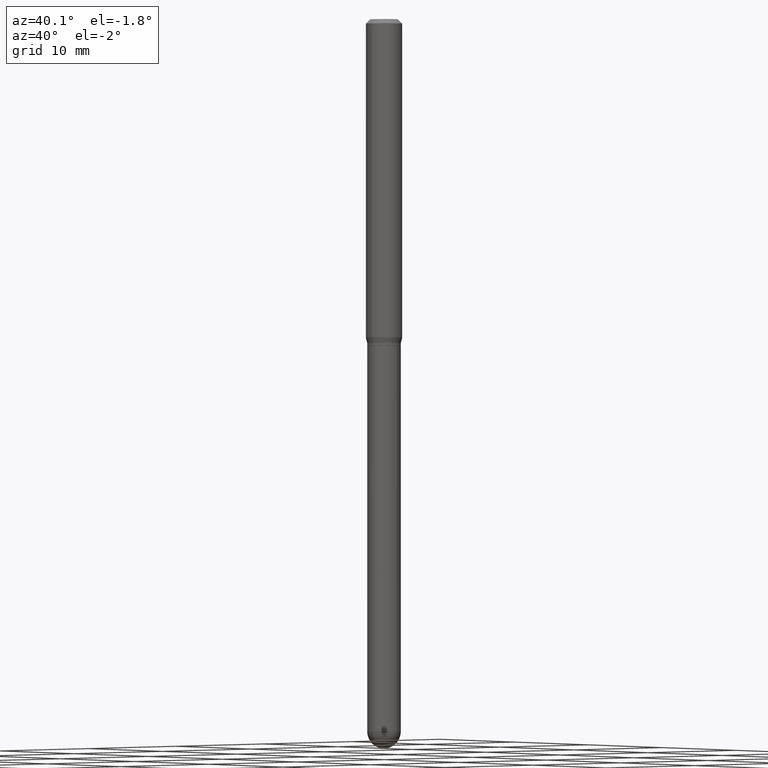
[diagram: clean part render]
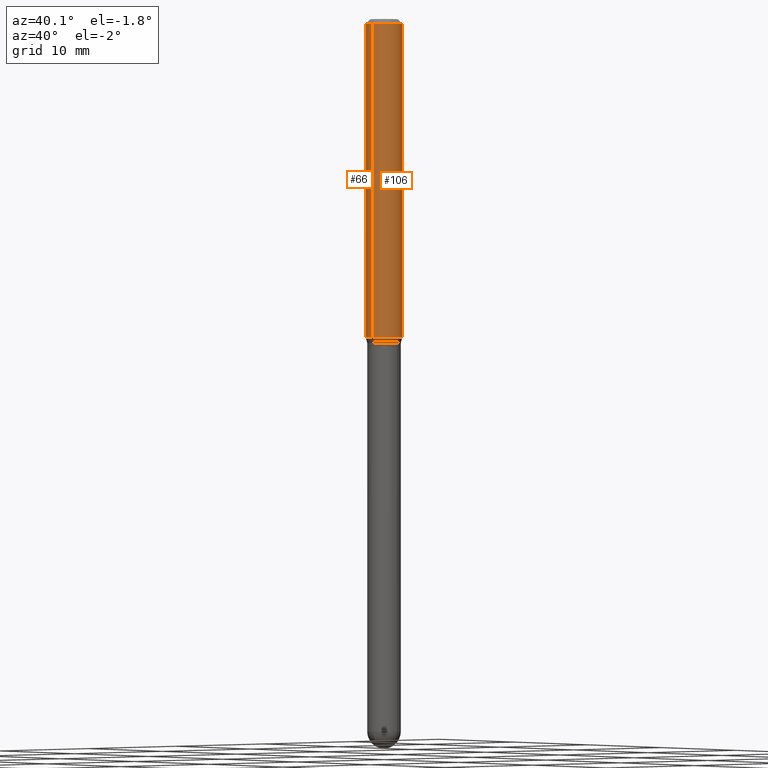
[diagram: same view with one multi-face feature highlighted, each face labeled with its STEP entity id]
A machine part, auxiliary view. The highlighted faces form ONE feature: a constant-radius fillet chain: 2 tangent blend faces with common blend radius 1.5875 mm. The faces share edges in the B-rep.
Their STEP definitions:
[1] entity #66 (Cylinder):
#9 = EDGE_CURVE ( 'NONE', #77, #70, #365, .T. ) ;
#15 = EDGE_LOOP ( 'NONE', ( #261, #262, #410, #175 ) ) ;
#17 = CARTESIAN_POINT ( 'NONE',  ( -4.364351673553916201E-16, -0.06250000000000000000, 2.182151499811262657E-16 ) ) ;
#22 = CARTESIAN_POINT ( 'NONE',  ( 3.668243995867287610E-31, -5.237163599547054290E-17, -0.01500000000000006710 ) ) ;
#24 = DIRECTION ( 'NONE',  ( -2.445495997244847628E-29, 3.491442399698020252E-15, 1.000000000000000000 ) ) ;
#26 = AXIS2_PLACEMENT_3D ( 'NONE', #224, #147, #331 ) ;
#30 = DIRECTION ( 'NONE',  ( -2.445495997244847628E-29, 3.491442399698020646E-15, 1.000000000000000000 ) ) ;
#33 = CYLINDRICAL_SURFACE ( 'NONE', #148, 0.06250000000000000000 ) ;
#66 = ADVANCED_FACE ( 'NONE', ( #244 ), #33, .T. ) ;
#70 = VERTEX_POINT ( 'NONE', #412 ) ;
#74 = CARTESIAN_POINT ( 'NONE',  ( -4.364351673553650454E-16, -0.06250000000000383027, -1.091339745962155883 ) ) ;
#77 = VERTEX_POINT ( 'NONE', #74 ) ;
#100 = DIRECTION ( 'NONE',  ( -2.445495997244847628E-29, 3.491442399698020252E-15, 1.000000000000000000 ) ) ;
#112 = DIRECTION ( 'NONE',  ( -6.982962677686265922E-15, -1.000000000000000000, 3.483106191921935554E-15 ) ) ;
#115 = CARTESIAN_POINT ( 'NONE',  ( 4.440892098500893388E-16, 0.06249999999999993755, -0.01500000000000028394 ) ) ;
#126 = EDGE_CURVE ( 'NONE', #311, #70, #246, .T. ) ;
#147 = DIRECTION ( 'NONE',  ( -2.445495997244847628E-29, 3.491442399698020646E-15, 1.000000000000000000 ) ) ;
#148 = AXIS2_PLACEMENT_3D ( 'NONE', #464, #426, #250 ) ;
#154 = EDGE_CURVE ( 'NONE', #339, #77, #277, .T. ) ;
#170 = AXIS2_PLACEMENT_3D ( 'NONE', #22, #30, #112 ) ;
#175 = ORIENTED_EDGE ( 'NONE', *, *, #126, .F. ) ;
#183 = CARTESIAN_POINT ( 'NONE',  ( 4.440892098500891416E-16, 0.06249999999999617667, -1.091339745962156327 ) ) ;
#203 = VECTOR ( 'NONE', #100, 39.37007874015748143 ) ;
#224 = CARTESIAN_POINT ( 'NONE',  ( 2.668866980384661490E-29, -3.810349861527938481E-15, -1.091339745962156105 ) ) ;
#244 = FACE_OUTER_BOUND ( 'NONE', #15, .T. ) ;
#246 = CIRCLE ( 'NONE', #170, 0.06250000000000000000 ) ;
#250 = DIRECTION ( 'NONE',  ( -6.982962677686265922E-15, -1.000000000000000000, 3.491442399698020252E-15 ) ) ;
#261 = ORIENTED_EDGE ( 'NONE', *, *, #353, .F. ) ;
#262 = ORIENTED_EDGE ( 'NONE', *, *, #154, .T. ) ;
#277 = CIRCLE ( 'NONE', #26, 0.06250000000000000000 ) ;
#289 = LINE ( 'NONE', #373, #385 ) ;
#311 = VERTEX_POINT ( 'NONE', #115 ) ;
#331 = DIRECTION ( 'NONE',  ( -6.982962677686265922E-15, -1.000000000000000000, 4.370956789862821150E-15 ) ) ;
#339 = VERTEX_POINT ( 'NONE', #183 ) ;
#353 = EDGE_CURVE ( 'NONE', #339, #311, #289, .T. ) ;
#365 = LINE ( 'NONE', #17, #203 ) ;
#373 = CARTESIAN_POINT ( 'NONE',  ( 4.440892098500625669E-16, 0.06250000000000000000, -2.182151499811262657E-16 ) ) ;
#385 = VECTOR ( 'NONE', #24, 39.37007874015748143 ) ;
#410 = ORIENTED_EDGE ( 'NONE', *, *, #9, .T. ) ;
#412 = CARTESIAN_POINT ( 'NONE',  ( -4.364351673553912750E-16, -0.06250000000000005551, -0.01499999999999984852 ) ) ;
#426 = DIRECTION ( 'NONE',  ( -2.445495997244847628E-29, 3.491442399698020646E-15, 1.000000000000000000 ) ) ;
#464 = CARTESIAN_POINT ( 'NONE',  ( 0.000000000000000000, 0.000000000000000000, 0.000000000000000000 ) ) ;
[2] entity #106 (Cylinder):
#5 = DIRECTION ( 'NONE',  ( -6.982962677686265922E-15, -1.000000000000000000, 4.370956789862821150E-15 ) ) ;
#8 = ORIENTED_EDGE ( 'NONE', *, *, #353, .T. ) ;
#9 = EDGE_CURVE ( 'NONE', #77, #70, #365, .T. ) ;
#17 = CARTESIAN_POINT ( 'NONE',  ( -4.364351673553916201E-16, -0.06250000000000000000, 2.182151499811262657E-16 ) ) ;
#21 = DIRECTION ( 'NONE',  ( -6.982962677686265922E-15, -1.000000000000000000, 3.483106191921935554E-15 ) ) ;
#24 = DIRECTION ( 'NONE',  ( -2.445495997244847628E-29, 3.491442399698020252E-15, 1.000000000000000000 ) ) ;
#69 = CIRCLE ( 'NONE', #86, 0.06250000000000000000 ) ;
#70 = VERTEX_POINT ( 'NONE', #412 ) ;
#74 = CARTESIAN_POINT ( 'NONE',  ( -4.364351673553650454E-16, -0.06250000000000383027, -1.091339745962155883 ) ) ;
#77 = VERTEX_POINT ( 'NONE', #74 ) ;
#79 = FACE_OUTER_BOUND ( 'NONE', #485, .T. ) ;
#86 = AXIS2_PLACEMENT_3D ( 'NONE', #371, #490, #21 ) ;
#100 = DIRECTION ( 'NONE',  ( -2.445495997244847628E-29, 3.491442399698020252E-15, 1.000000000000000000 ) ) ;
#106 = ADVANCED_FACE ( 'NONE', ( #79 ), #217, .T. ) ;
#114 = CIRCLE ( 'NONE', #394, 0.06250000000000000000 ) ;
#115 = CARTESIAN_POINT ( 'NONE',  ( 4.440892098500893388E-16, 0.06249999999999993755, -0.01500000000000028394 ) ) ;
#142 = ORIENTED_EDGE ( 'NONE', *, *, #9, .F. ) ;
#183 = CARTESIAN_POINT ( 'NONE',  ( 4.440892098500891416E-16, 0.06249999999999617667, -1.091339745962156327 ) ) ;
#203 = VECTOR ( 'NONE', #100, 39.37007874015748143 ) ;
#209 = ORIENTED_EDGE ( 'NONE', *, *, #270, .T. ) ;
#217 = CYLINDRICAL_SURFACE ( 'NONE', #327, 0.06250000000000000000 ) ;
#270 = EDGE_CURVE ( 'NONE', #77, #339, #114, .T. ) ;
#289 = LINE ( 'NONE', #373, #385 ) ;
#311 = VERTEX_POINT ( 'NONE', #115 ) ;
#324 = CARTESIAN_POINT ( 'NONE',  ( 0.000000000000000000, 0.000000000000000000, 0.000000000000000000 ) ) ;
#327 = AXIS2_PLACEMENT_3D ( 'NONE', #324, #377, #501 ) ;
#339 = VERTEX_POINT ( 'NONE', #183 ) ;
#353 = EDGE_CURVE ( 'NONE', #339, #311, #289, .T. ) ;
#364 = EDGE_CURVE ( 'NONE', #70, #311, #69, .T. ) ;
#365 = LINE ( 'NONE', #17, #203 ) ;
#371 = CARTESIAN_POINT ( 'NONE',  ( 3.668243995867287610E-31, -5.237163599547054290E-17, -0.01500000000000006710 ) ) ;
#373 = CARTESIAN_POINT ( 'NONE',  ( 4.440892098500625669E-16, 0.06250000000000000000, -2.182151499811262657E-16 ) ) ;
#377 = DIRECTION ( 'NONE',  ( -2.445495997244847628E-29, 3.491442399698020646E-15, 1.000000000000000000 ) ) ;
#385 = VECTOR ( 'NONE', #24, 39.37007874015748143 ) ;
#394 = AXIS2_PLACEMENT_3D ( 'NONE', #511, #472, #5 ) ;
#402 = ORIENTED_EDGE ( 'NONE', *, *, #364, .F. ) ;
#412 = CARTESIAN_POINT ( 'NONE',  ( -4.364351673553912750E-16, -0.06250000000000005551, -0.01499999999999984852 ) ) ;
#472 = DIRECTION ( 'NONE',  ( -2.445495997244847628E-29, 3.491442399698020646E-15, 1.000000000000000000 ) ) ;
#485 = EDGE_LOOP ( 'NONE', ( #209, #8, #402, #142 ) ) ;
#490 = DIRECTION ( 'NONE',  ( -2.445495997244847628E-29, 3.491442399698020646E-15, 1.000000000000000000 ) ) ;
#501 = DIRECTION ( 'NONE',  ( -6.982962677686265922E-15, -1.000000000000000000, 3.491442399698020252E-15 ) ) ;
#511 = CARTESIAN_POINT ( 'NONE',  ( 2.668866980384661490E-29, -3.810349861527938481E-15, -1.091339745962156105 ) ) ;